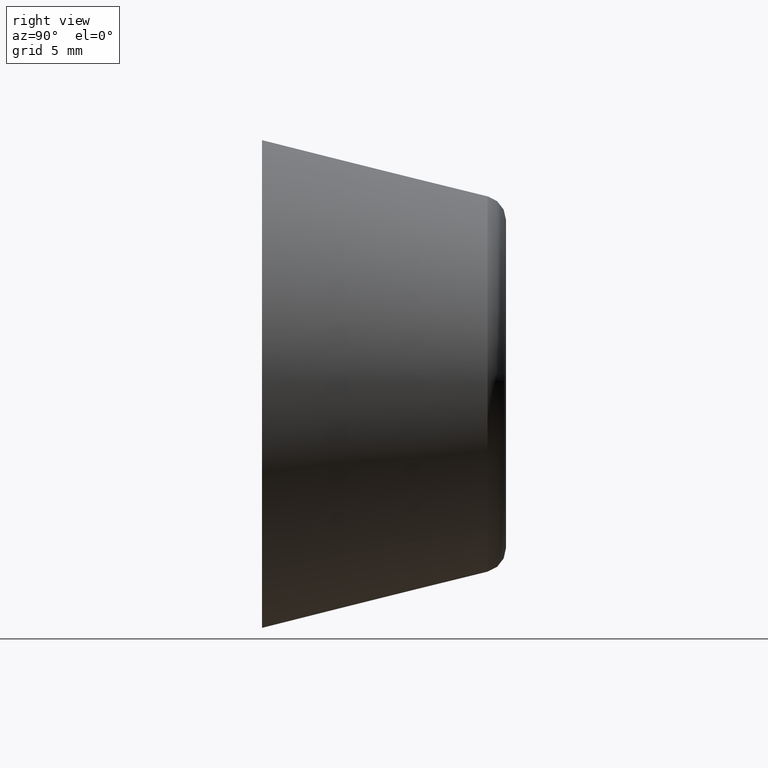
[diagram: clean part render]
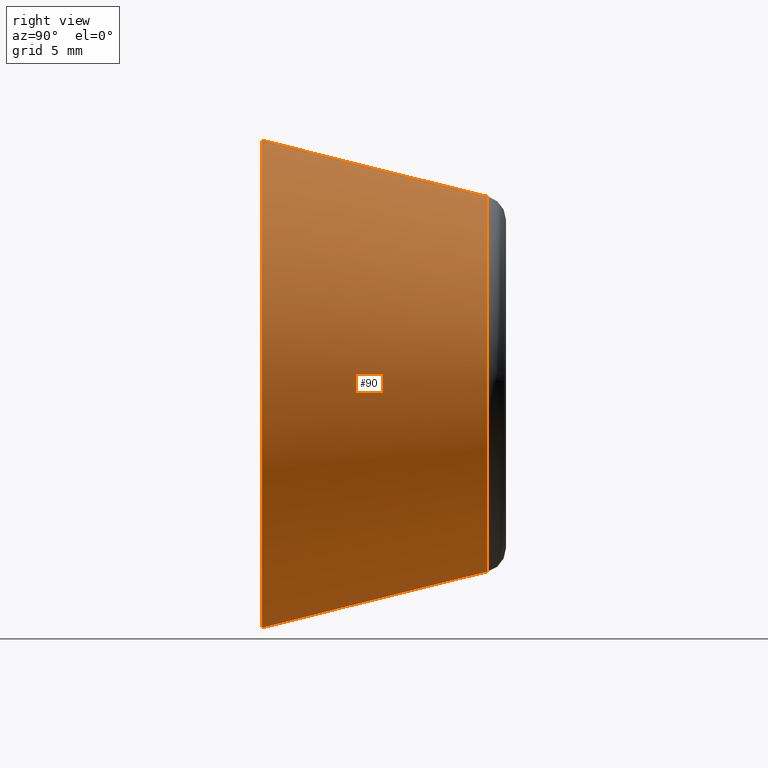
[diagram: same view with one face highlighted and labeled with its STEP entity id]
A machine part, right view. The second image highlights one B-rep face of the part: STEP entity #90.
In plain terms, the highlighted conical surface has half-angle 14.036 deg.
Its self-contained STEP definition (entity closure, byte-faithful):
#20=CONICAL_SURFACE('',#102,10.,0.244978663126864);
#26=FACE_BOUND('',#43,.T.);
#33=FACE_OUTER_BOUND('',#42,.T.);
#42=EDGE_LOOP('',(#77));
#43=EDGE_LOOP('',(#78));
#53=CIRCLE('',#99,7.68936609374092);
#55=CIRCLE('',#103,10.);
#60=VERTEX_POINT('',#145);
#62=VERTEX_POINT('',#151);
#67=EDGE_CURVE('',#60,#60,#53,.T.);
#69=EDGE_CURVE('',#62,#62,#55,.T.);
#77=ORIENTED_EDGE('',*,*,#69,.T.);
#78=ORIENTED_EDGE('',*,*,#67,.F.);
#90=ADVANCED_FACE('',(#33,#26),#20,.T.);
#99=AXIS2_PLACEMENT_3D('',#146,#117,#118);
#102=AXIS2_PLACEMENT_3D('',#150,#123,#124);
#103=AXIS2_PLACEMENT_3D('',#152,#125,#126);
#117=DIRECTION('center_axis',(0.,1.,0.));
#118=DIRECTION('ref_axis',(-1.,0.,1.22464679914735E-16));
#123=DIRECTION('center_axis',(0.,-1.,0.));
#124=DIRECTION('ref_axis',(1.,0.,0.));
#125=DIRECTION('center_axis',(0.,1.,0.));
#126=DIRECTION('ref_axis',(1.,0.,0.));
#145=CARTESIAN_POINT('',(-7.68936609374092,9.24253562503633,9.416757574172E-16));
#146=CARTESIAN_POINT('Origin',(0.,9.24253562503633,0.));
#150=CARTESIAN_POINT('Origin',(0.,0.,0.));
#151=CARTESIAN_POINT('',(-10.,-8.65917475155937E-33,1.22464679914735E-15));
#152=CARTESIAN_POINT('Origin',(0.,0.,0.));